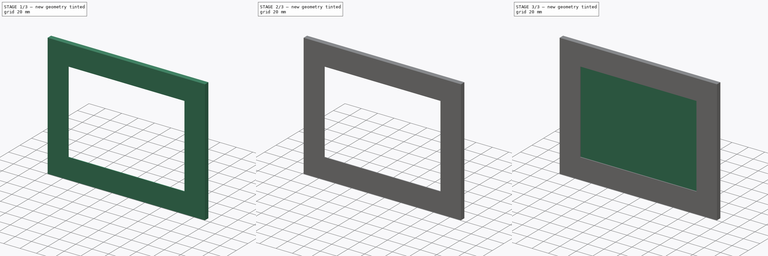
[diagram: build sequence overview — one tinted view per stage of 3, left to right]
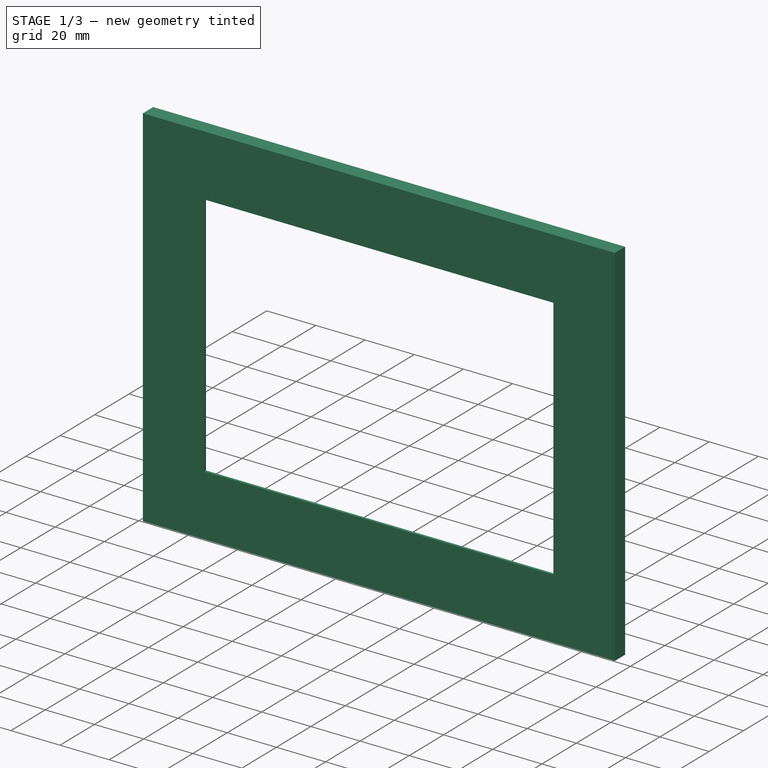
[diagram: stage 1 of 3 — iso view after this stage's code; geometry added in this stage tinted green]
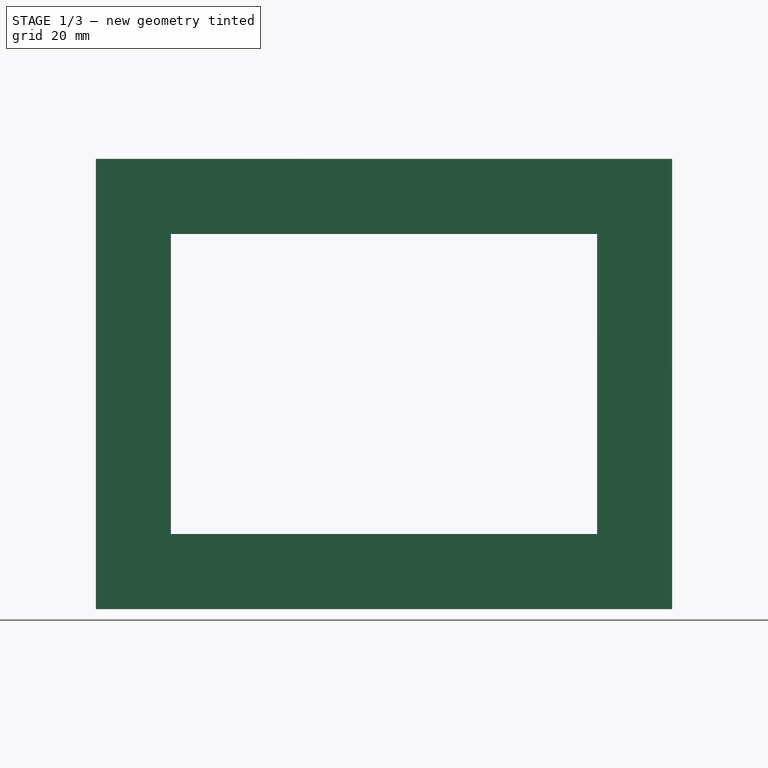
[diagram: stage 1 of 3 — front view after this stage's code; geometry added in this stage tinted green]
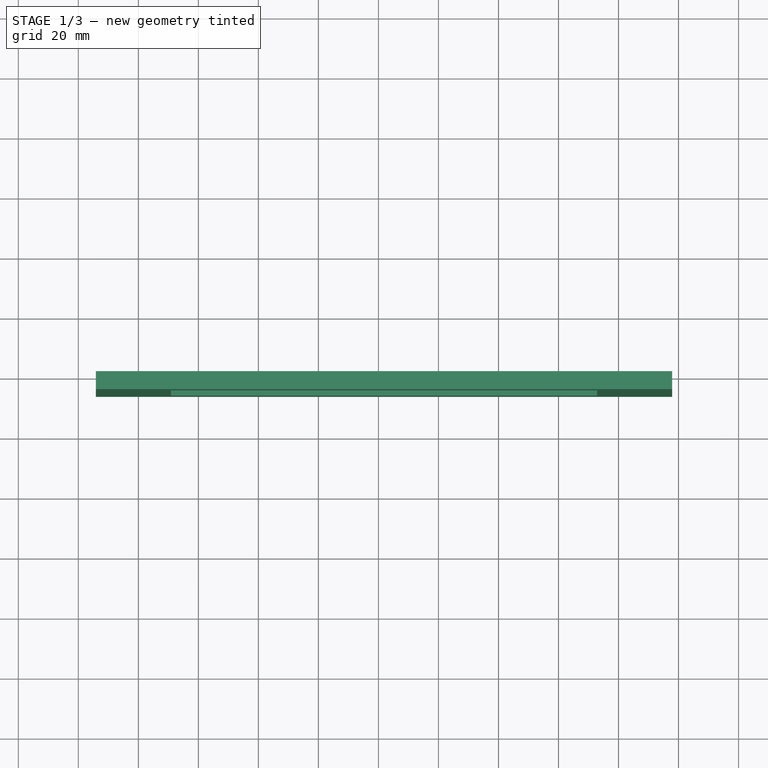
[diagram: stage 1 of 3 — top view after this stage's code; geometry added in this stage tinted green]
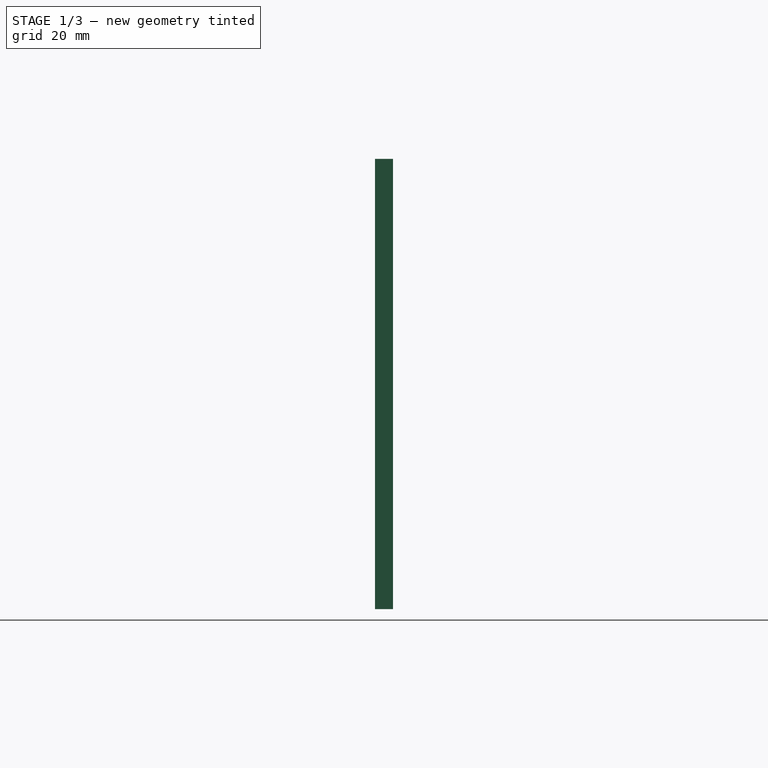
[diagram: stage 1 of 3 — right view after this stage's code; geometry added in this stage tinted green]
FCSTD DOCUMENT  (FreeCAD 0.21R33771 (Git))
Label: iteration1
License: All rights reserved
LicenseURL: https://en.wikipedia.org/wiki/All_rights_reserved
objects: Sketcher::SketchObject×6, PartDesign::Pocket×5, PartDesign::Pad×3, PartDesign::Body×2, PartDesign::ShapeBinder×1
note: 25 computed .brp shape members not serialized (recipe doc carries the construction recipe); baked Part::Feature solids carry a one-line shape summary decoded from their .brp

FEATURE [PartDesign::Body] Body  label="lcd screen"
  Group = -> [Sketch,Pad,Sketch001,Pocket]
  Origin = -> Origin
  Placement = pos=(0,10,0) rot=(0,0,1;0rad)
  Tip = -> Pocket
FEATURE [Sketcher::SketchObject] Sketch002  label="BezelFront"
  FullyConstrained = true
  MapMode = 5
  Placement = pos=(0,0,0) rot=(1,0,0;1.5708rad)
  Support = -> [XZ_Plane001]
  sketch-geometry (12):
    g0: LineSegment StartX=-94.1431 StartY=75.8022 StartZ=0 EndX=97.8569 EndY=75.8022 EndZ=0
    g1: LineSegment StartX=97.8569 StartY=75.8022 StartZ=0 EndX=97.8569 EndY=-74.1978 EndZ=0
    g2: LineSegment StartX=97.8569 StartY=-74.1978 StartZ=0 EndX=-94.1431 EndY=-74.1978 EndZ=0
    g3: LineSegment StartX=-94.1431 StartY=-74.1978 StartZ=0 EndX=-94.1431 EndY=75.8022 EndZ=0
    g4: LineSegment StartX=-69.1431 StartY=50.8022 StartZ=0 EndX=72.8569 EndY=50.8022 EndZ=0
    g5: LineSegment StartX=72.8569 StartY=50.8022 StartZ=0 EndX=72.8569 EndY=-49.1978 EndZ=0
    g6: LineSegment StartX=72.8569 StartY=-49.1978 StartZ=0 EndX=-69.1431 EndY=-49.1978 EndZ=0
    g7: LineSegment StartX=-69.1431 StartY=-49.1978 StartZ=0 EndX=-69.1431 EndY=50.8022 EndZ=0
    g8: LineSegment StartX=-69.1431 StartY=-49.1978 StartZ=0 EndX=-69.1431 EndY=-74.1978 EndZ=0
    g9: LineSegment StartX=72.8569 StartY=-49.1978 StartZ=0 EndX=97.8569 EndY=-49.1978 EndZ=0
    g10: LineSegment StartX=72.8569 StartY=50.8022 StartZ=0 EndX=72.8569 EndY=75.8022 EndZ=0
    g11: LineSegment StartX=-69.1431 StartY=50.8022 StartZ=0 EndX=-94.1431 EndY=50.8022 EndZ=0
  constraints (36):
    c: Coincident(g0,g1)
    c: Coincident(g1,g2)
    c: Coincident(g2,g3)
    c: Coincident(g3,g0)
    c: Horizontal(g0)
    c: Horizontal(g2)
    c: Vertical(g1)
    c: Vertical(g3)
    c: Coincident(g4,g5)
    c: Coincident(g5,g6)
    c: Coincident(g6,g7)
    c: Coincident(g7,g4)
    c: Horizontal(g4)
    c: Horizontal(g6)
    c: Vertical(g5)
    c: Vertical(g7)
    c: DistanceX(g6,g6) = 142
    c: Coincident(g8,g6)
    c: PointOnObject(g8,g2)
    c: Vertical(g8)
    c: Coincident(g9,g5)
    c: PointOnObject(g9,g1)
    c: Horizontal(g9)
    c: Coincident(g10,g4)
    c: PointOnObject(g10,g0)
    c: Vertical(g10)
    c: Coincident(g11,g4)
    c: PointOnObject(g11,g3)
    c: Horizontal(g11)
    c: DistanceY(g8,g8) = 25
    c: DistanceX(g9,g9) = 25
    c: DistanceY(g10,g10) = 25
    c: DistanceX(g11,g11) = 25
    c: DistanceY(g5,g5) = 100
    c: Distance(g-1,g4) = 88.82
    c: Distance(g-1,g4) = 85.8
FEATURE [PartDesign::Pad] Pad001
  Direction = (0,-1,-2e-16)
  Length = 6
  Length2 = 10
  Placement = pos=(0,0,0) rot=(1,0,0;1.5708rad)
  Profile = -> Sketch002
  ReferenceAxis = -> Sketch002 [N_Axis]
  Type = 0
FEATURE [Sketcher::SketchObject] Sketch003  label="LCDInset"
  FullyConstrained = true
  MapMode = 5
  Placement = pos=(0,0,0) rot=(-1,0,0;1.5708rad)
  Support = -> [Pad001]
  sketch-geometry (4):
    g0: LineSegment StartX=-77.34 StartY=58.5 StartZ=0 EndX=78.66 EndY=58.5 EndZ=0
    g1: LineSegment StartX=78.66 StartY=58.5 StartZ=0 EndX=78.66 EndY=-60.5 EndZ=0
    g2: LineSegment StartX=78.66 StartY=-60.5 StartZ=0 EndX=-77.34 EndY=-60.5 EndZ=0
    g3: LineSegment StartX=-77.34 StartY=-60.5 StartZ=0 EndX=-77.34 EndY=58.5 EndZ=0
  constraints (12):
    c: Coincident(g0,g1)
    c: Coincident(g1,g2)
    c: Coincident(g2,g3)
    c: Coincident(g3,g0)
    c: Horizontal(g0)
    c: Horizontal(g2)
    c: Vertical(g1)
    c: Vertical(g3)
    c: DistanceX(g0,g0) = 156
    c: Distance(g-1,g1) = 78.66
    c: DistanceY(g1,g1) = 119
    c: DistanceY(g-1,g2) = -60.5
FEATURE [PartDesign::ShapeBinder] ShapeBinder
  Support = -> [Sketch003]
  TraceSupport = false
FEATURE [PartDesign::Pocket] Pocket001
  BaseFeature = -> Pad001
  Direction = (0,-1,-2e-16)
  Length = 5
  Length2 = 5
  Placement = pos=(0,0,0) rot=(1,0,0;1.5708rad)
  Profile = -> Sketch003
  ReferenceAxis = -> Sketch003 [N_Axis]
  Type = 0
FEATURE [Sketcher::SketchObject] Sketch004  label="BacklightPowerCable"
  FullyConstrained = true
  MapMode = 5
  Placement = pos=(0,0,0) rot=(-1,0,0;1.5708rad)
  Support = -> [Pocket001]
  sketch-geometry (4):
    g0: LineSegment StartX=-69.0648 StartY=42.987 StartZ=0 EndX=-83.0648 EndY=42.987 EndZ=0
    g1: LineSegment StartX=-83.0648 StartY=42.987 StartZ=0 EndX=-83.0648 EndY=57.987 EndZ=0
    g2: LineSegment StartX=-83.0648 StartY=57.987 StartZ=0 EndX=-69.0648 EndY=57.987 EndZ=0
    g3: LineSegment StartX=-69.0648 StartY=57.987 StartZ=0 EndX=-69.0648 EndY=42.987 EndZ=0
  constraints (12):
    c: Coincident(g0,g1)
    c: Coincident(g1,g2)
    c: Coincident(g2,g3)
    c: Coincident(g3,g0)
    c: Horizontal(g0)
    c: Horizontal(g2)
    c: Vertical(g1)
    c: Vertical(g3)
    c: DistanceY(g1,g1) = 15
    c: DistanceX(g2,g2) = 14
    c: Distance(g-1,g0) = 81.35
    c: Distance(g-1,g2) = 90.18
FEATURE [PartDesign::Pocket] Pocket002
  BaseFeature = -> Pocket001
  Direction = (0,-1,-2e-16)
  Length = 5
  Length2 = 5
  Placement = pos=(0,0,0) rot=(1,0,0;1.5708rad)
  Profile = -> Sketch004
  ReferenceAxis = -> Sketch004 [N_Axis]
  Type = 0
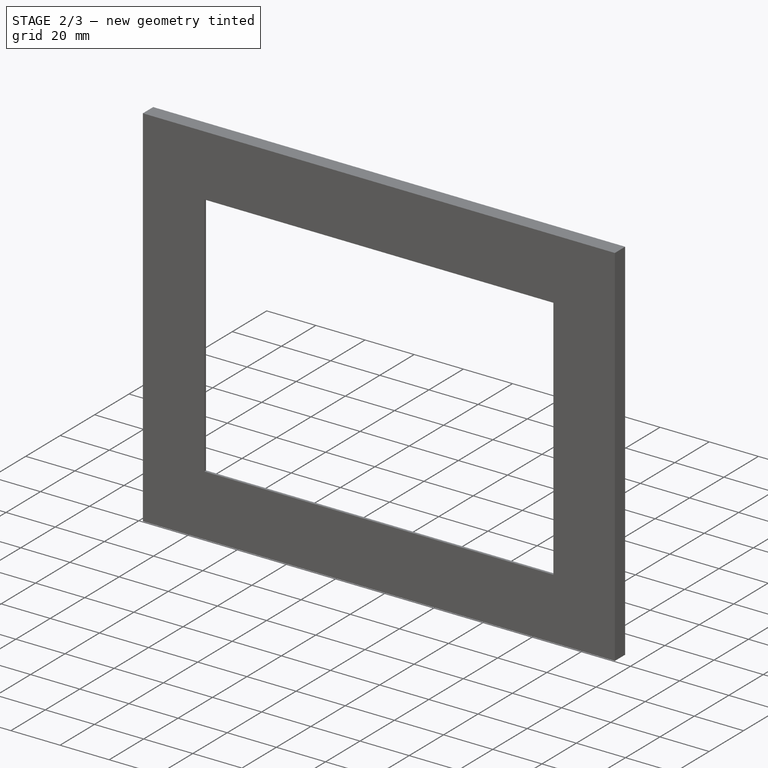
[diagram: stage 2 of 3 — iso view after this stage's code; geometry added in this stage tinted green]
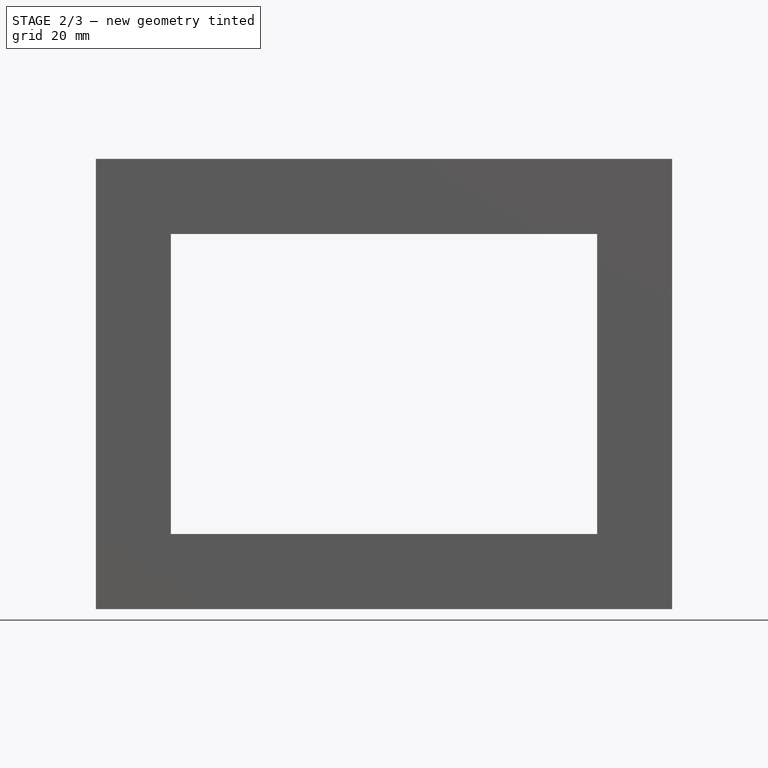
[diagram: stage 2 of 3 — front view after this stage's code; geometry added in this stage tinted green]
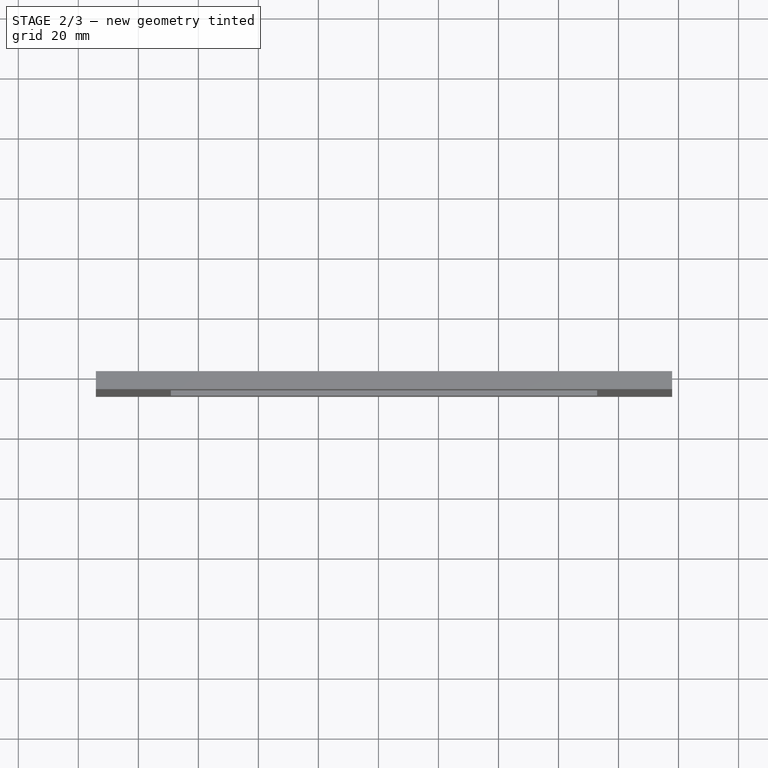
[diagram: stage 2 of 3 — top view after this stage's code; geometry added in this stage tinted green]
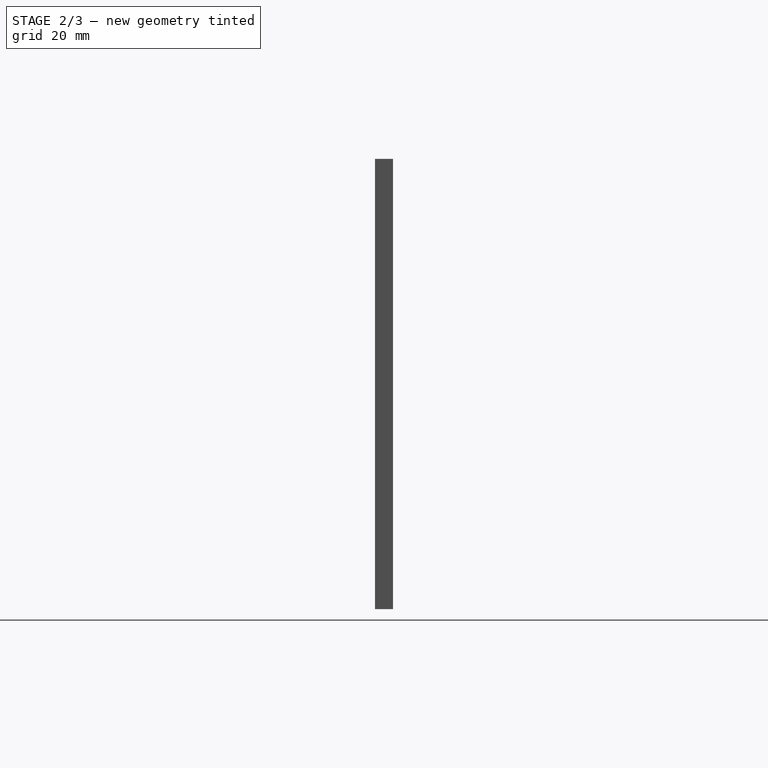
[diagram: stage 2 of 3 — right view after this stage's code; geometry added in this stage tinted green]
FEATURE [Sketcher::SketchObject] Sketch005  label="LcdRibbonCable"
  FullyConstrained = true
  MapMode = 5
  Placement = pos=(0,0,0) rot=(1,0,0;1.5708rad)
  Support = -> [XZ_Plane001]
  sketch-geometry (5):
    g0: LineSegment StartX=-15.2602 StartY=-58.12 StartZ=0 EndX=-55.2602 EndY=-58.12 EndZ=0
    g1: LineSegment StartX=-55.2602 StartY=-58.12 StartZ=0 EndX=-55.2602 EndY=-63.12 EndZ=0
    g2: LineSegment StartX=-55.2602 StartY=-63.12 StartZ=0 EndX=-15.2602 EndY=-63.12 EndZ=0
    g3: LineSegment StartX=-15.2602 StartY=-63.12 StartZ=0 EndX=-15.2602 EndY=-58.12 EndZ=0
    g4: LineSegment StartX=-75.29 StartY=-58.35 StartZ=0 EndX=-55.29 EndY=-58.35 EndZ=0
  constraints (16):
    c: Coincident(g0,g1)
    c: Coincident(g1,g2)
    c: Coincident(g2,g3)
    c: Coincident(g3,g0)
    c: Horizontal(g0)
    c: Horizontal(g2)
    c: Vertical(g1)
    c: Vertical(g3)
    c: DistanceX(g2,g2) = 40
    c: DistanceY(g3,g3) = 5
    c: Horizontal(g4)
    c: DistanceX(g4,g4) = 20
    c: Distance(g-1,g0) = 60.09
    c: DistanceY(g-1,g0) = -58.12
    c: DistanceY(g-1,g4) = -58.35
    c: DistanceX(g-2,g4) = -75.29
FEATURE [PartDesign::Pad] Pad002
  BaseFeature = -> Pocket002
  Direction = (0,-1,-2e-16)
  Length = 5
  Length2 = 10
  Placement = pos=(0,0,0) rot=(1,0,0;1.5708rad)
  Profile = -> Sketch005
  ReferenceAxis = -> Sketch005 [N_Axis]
  Type = 0
FEATURE [PartDesign::Pocket] Pocket003
  BaseFeature = -> Pad002
  Direction = (0,-1,-2e-16)
  Length = 1
  Length2 = 5
  Placement = pos=(0,0,0) rot=(1,0,0;1.5708rad)
  Profile = -> Pad002 [Face9]
  Type = 0
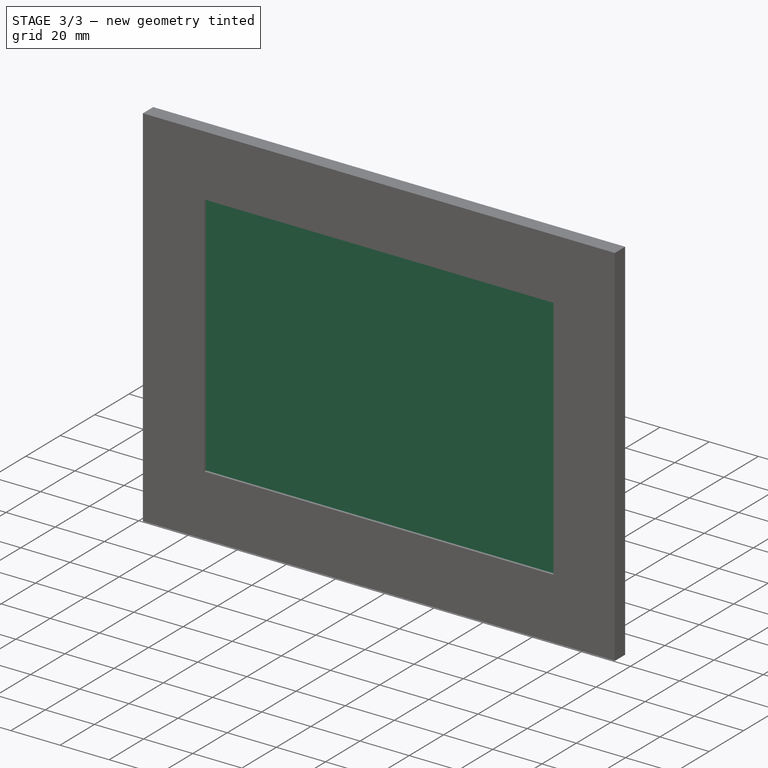
[diagram: stage 3 of 3 — iso view after this stage's code; geometry added in this stage tinted green]
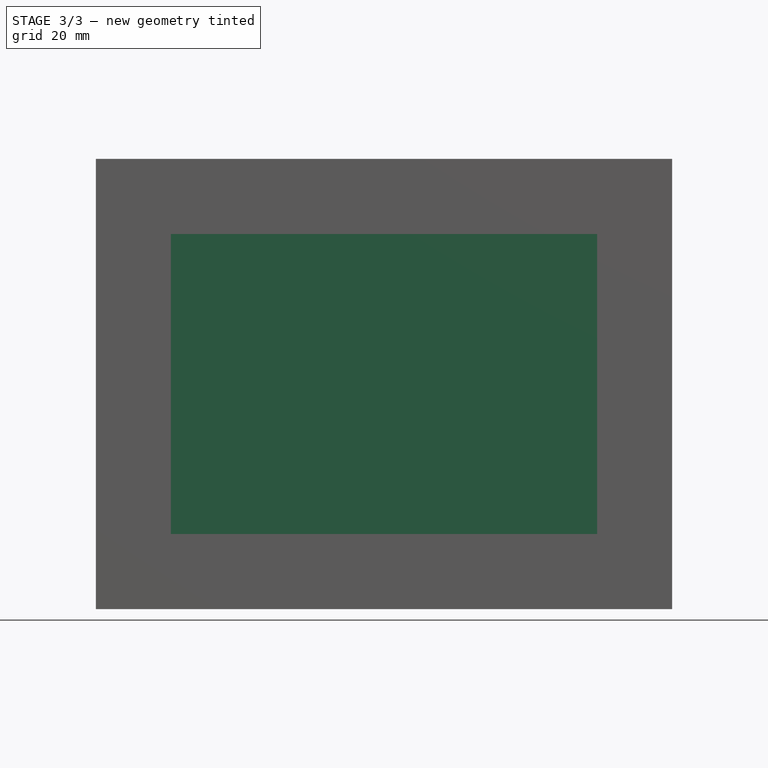
[diagram: stage 3 of 3 — front view after this stage's code; geometry added in this stage tinted green]
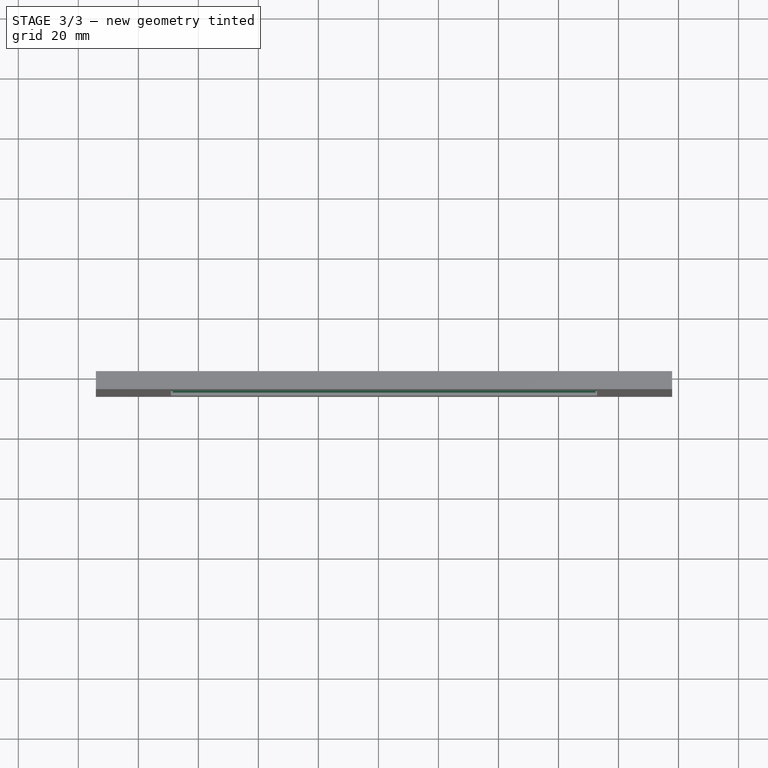
[diagram: stage 3 of 3 — top view after this stage's code; geometry added in this stage tinted green]
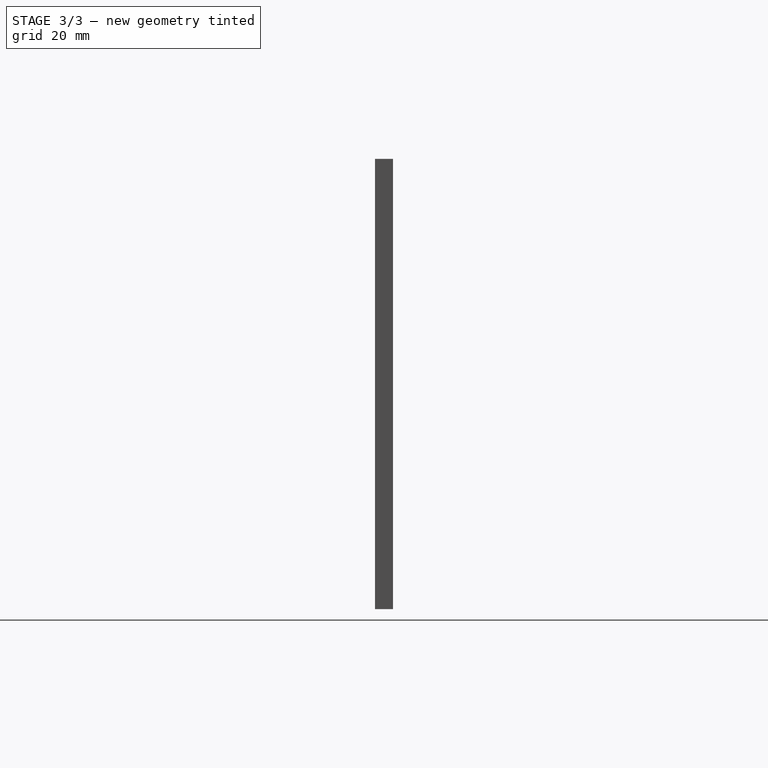
[diagram: stage 3 of 3 — right view after this stage's code; geometry added in this stage tinted green]
FEATURE [Sketcher::SketchObject] Sketch
  FullyConstrained = true
  MapMode = 5
  Placement = pos=(0,0,0) rot=(1,0,0;1.5708rad)
  Support = -> [XZ_Plane]
  sketch-geometry (4):
    g0: LineSegment StartX=-76.5 StartY=58.5 StartZ=0 EndX=76.5 EndY=58.5 EndZ=0
    g1: LineSegment StartX=76.5 StartY=58.5 StartZ=0 EndX=76.5 EndY=-58.5 EndZ=0
    g2: LineSegment StartX=76.5 StartY=-58.5 StartZ=0 EndX=-76.5 EndY=-58.5 EndZ=0
    g3: LineSegment StartX=-76.5 StartY=-58.5 StartZ=0 EndX=-76.5 EndY=58.5 EndZ=0
  constraints (11):
    c: Coincident(g0,g1)
    c: Coincident(g1,g2)
    c: Coincident(g2,g3)
    c: Coincident(g3,g0)
    c: Horizontal(g0)
    c: Horizontal(g2)
    c: Vertical(g1)
    c: Vertical(g3)
    c: Symmetric(g0,g1,g-1)
    c: DistanceY(g1,g1) = 117
    c: DistanceX(g0,g0) = 153
FEATURE [PartDesign::Pad] Pad
  Direction = (0,-1,-2e-16)
  Length = 5
  Length2 = 10
  Placement = pos=(0,0,0) rot=(1,0,0;1.5708rad)
  Profile = -> Sketch
  ReferenceAxis = -> Sketch [N_Axis]
  Type = 0
FEATURE [Sketcher::SketchObject] Sketch001
  FullyConstrained = true
  MapMode = 5
  Placement = pos=(0,-5,0) rot=(1,0,0;1.5708rad)
  Support = -> [Pad]
  sketch-geometry (12):
    g0: LineSegment StartX=-68.55 StartY=55.1324 StartZ=0 EndX=72.35 EndY=55.1324 EndZ=0
    g1: LineSegment StartX=72.35 StartY=55.1324 StartZ=0 EndX=72.35 EndY=-49.0276 EndZ=0
    g2: LineSegment StartX=72.35 StartY=-49.0276 StartZ=0 EndX=-68.55 EndY=-49.0276 EndZ=0
    g3: LineSegment StartX=-68.55 StartY=-49.0276 StartZ=0 EndX=-68.55 EndY=55.1324 EndZ=0
    g4: LineSegment StartX=-68.55 StartY=-49.0276 StartZ=0 EndX=-68.55 EndY=-58.4276 EndZ=0
    g5: LineSegment StartX=72.35 StartY=55.1324 StartZ=0 EndX=72.35 EndY=58.7724 EndZ=0
    g6: LineSegment StartX=72.35 StartY=55.1324 StartZ=0 EndX=76.55 EndY=55.1324 EndZ=0
    g7: LineSegment StartX=-76.55 StartY=58.7724 StartZ=0 EndX=76.55 EndY=58.7724 EndZ=0
    g8: LineSegment StartX=76.55 StartY=58.7724 StartZ=0 EndX=76.55 EndY=-58.4276 EndZ=0
    g9: LineSegment StartX=76.55 StartY=-58.4276 StartZ=0 EndX=-76.55 EndY=-58.4276 EndZ=0
    g10: LineSegment StartX=-76.55 StartY=-58.4276 StartZ=0 EndX=-76.55 EndY=58.7724 EndZ=0
    g11: LineSegment StartX=-68.55 StartY=-49.0276 StartZ=0 EndX=-76.55 EndY=-49.0276 EndZ=0
  constraints (36):
    c: Coincident(g0,g1)
    c: Coincident(g1,g2)
    c: Coincident(g2,g3)
    c: Coincident(g3,g0)
    c: Horizontal(g0)
    c: Horizontal(g2)
    c: Vertical(g1)
    c: Vertical(g3)
    c: Coincident(g4,g2)
    c: Coincident(g5,g0)
    c: Vertical(g5)
    c: Coincident(g6,g0)
    c: Horizontal(g6)
    c: Coincident(g7,g8)
    c: Coincident(g8,g9)
    c: Coincident(g9,g10)
    c: Coincident(g10,g7)
    c: Horizontal(g7)
    c: Horizontal(g9)
    c: Vertical(g8)
    c: Vertical(g10)
    c: PointOnObject(g4,g9)
    c: PointOnObject(g6,g8)
    c: PointOnObject(g5,g7)
    c: Distance(g-1,g9) = 96.3
    c: Distance(g-1,g8) = 96.3
    c: DistanceY(g4,g4) = 9.4
    c: Coincident(g11,g2)
    c: PointOnObject(g11,g10)
    c: Horizontal(g11)
    c: DistanceX(g11,g11) = 8
    c: Perpendicular(g4,g11)
    c: DistanceX(g6,g6) = 4.2
    c: DistanceY(g5,g5) = 3.64
    c: DistanceX(g7,g7) = 153.1
    c: DistanceY(g10,g10) = 117.2
FEATURE [PartDesign::Pocket] Pocket  label="screen indentation"
  BaseFeature = -> Pad
  Direction = (0,1,2e-16)
  Length = 0.7
  Length2 = 5
  Placement = pos=(0,0,0) rot=(1,0,0;1.5708rad)
  Profile = -> Sketch001
  ReferenceAxis = -> Sketch001 [N_Axis]
  Type = 0
FEATURE [PartDesign::Pocket] Pocket004
  BaseFeature = -> Pocket003
  Direction = (0,2e-16,-1)
  Length = 5
  Length2 = 5
  Placement = pos=(0,0,0) rot=(1,0,0;1.5708rad)
  Profile = -> Pocket003 [Face29]
  Type = 0
FEATURE [PartDesign::Body] Body001  label="bezel"
  Group = -> [Sketch002,Pad001,Sketch003,Pocket001,Sketch004,Pocket002,Sketch005,Pad002,Pocket003,Pocket004]
  Origin = -> Origin001
  Tip = -> Pocket004
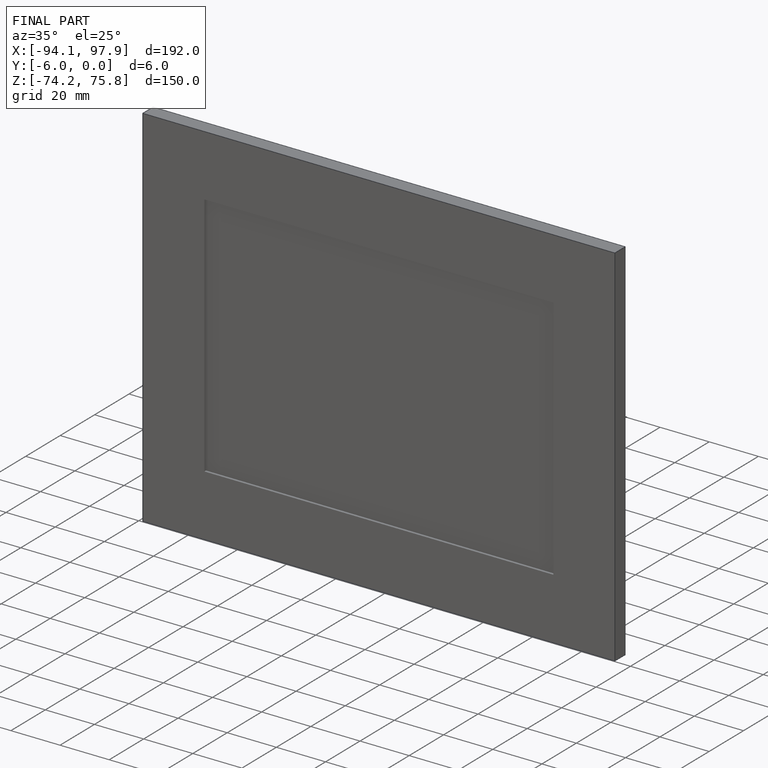
[diagram: finished part — iso view with bounding-box wireframe]
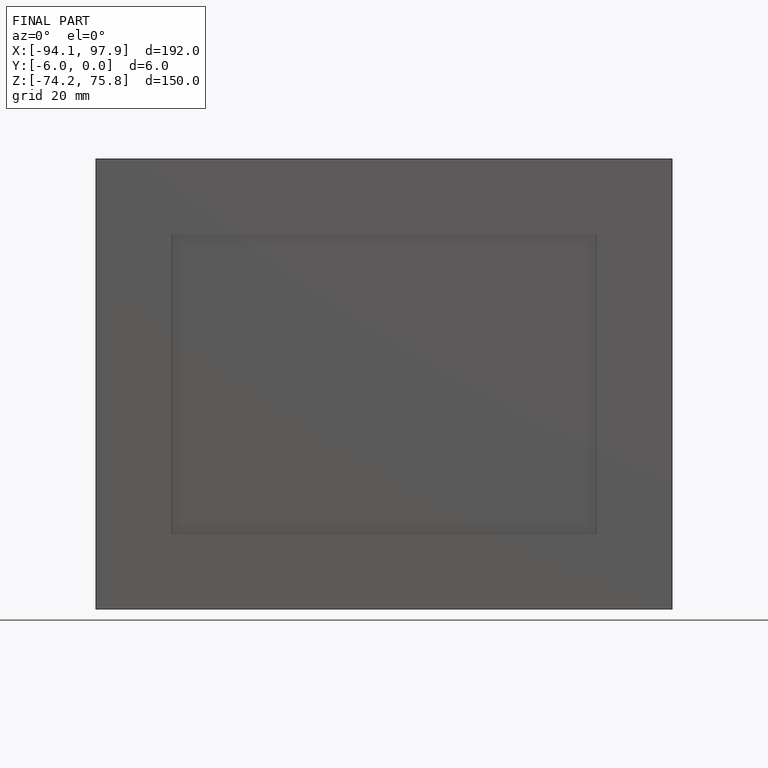
[diagram: finished part — front view with bounding-box wireframe]
